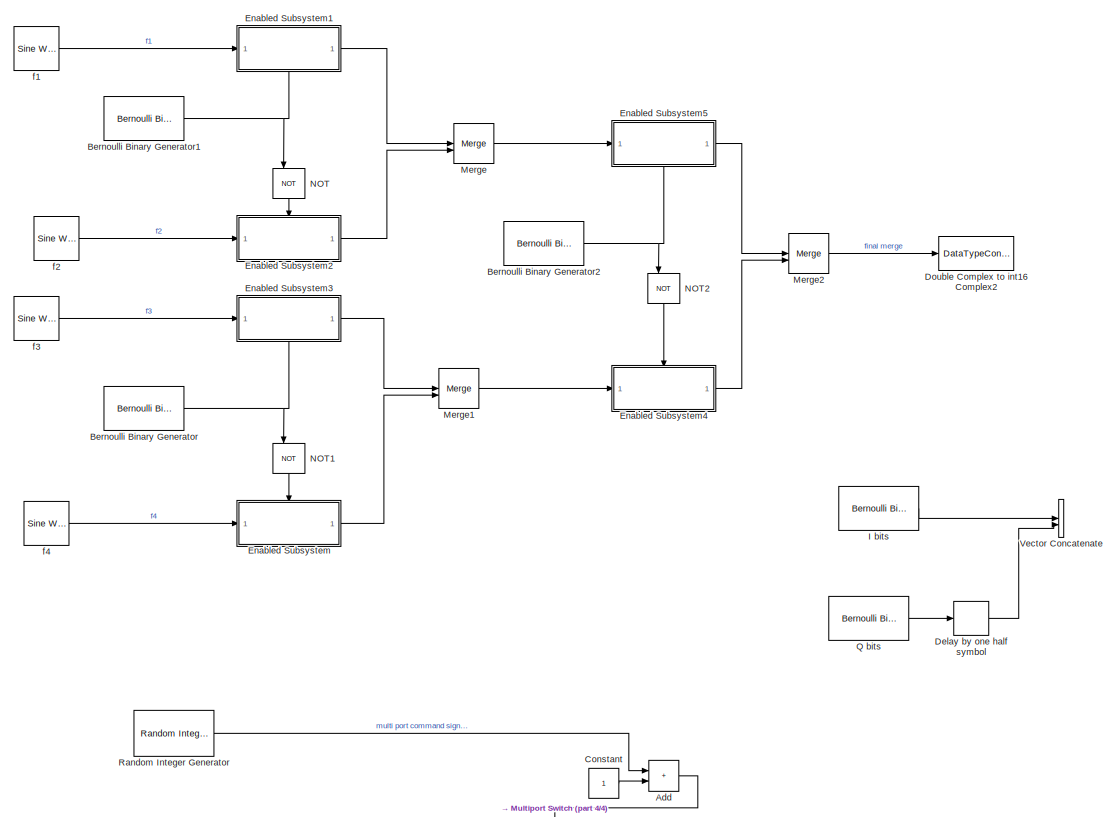
[diagram: root canvas - part 1/4, center side, full height]
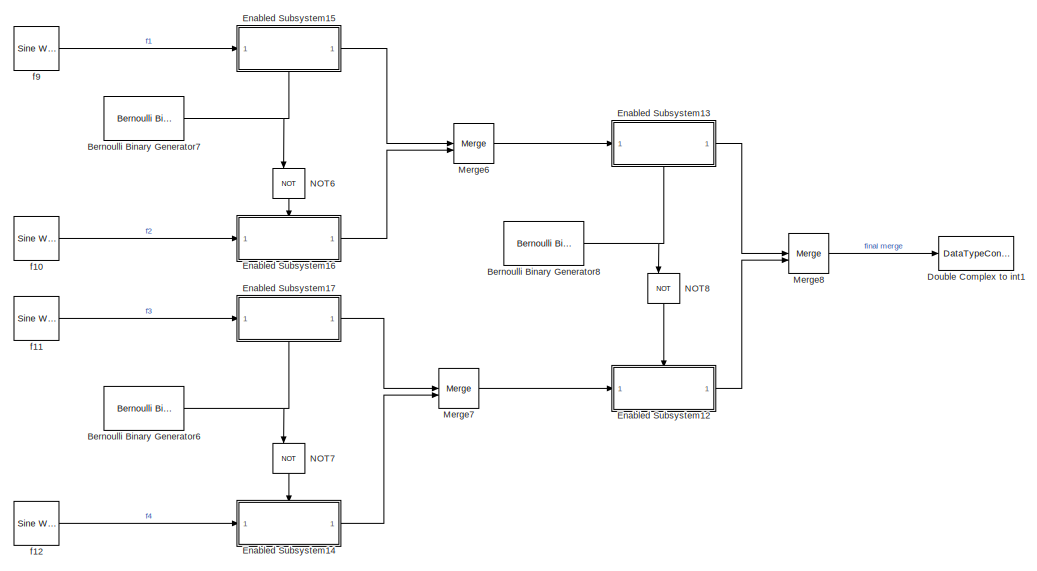
[diagram: root canvas - part 2/4, middle right region]
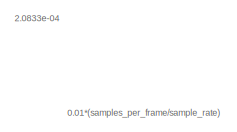
[diagram: root canvas - part 3/4, top left region]
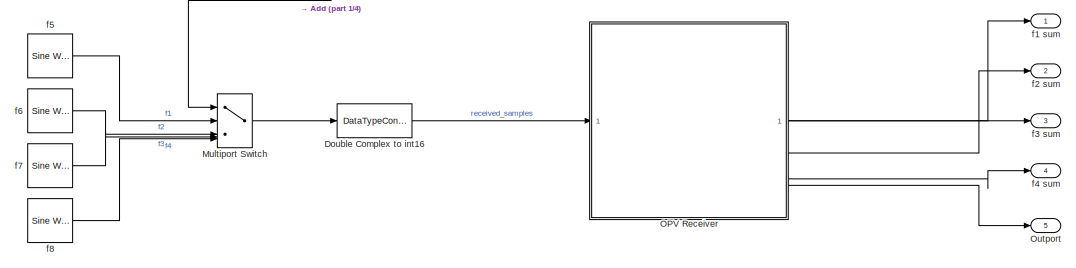
[diagram: root canvas - part 4/4, bottom center region]
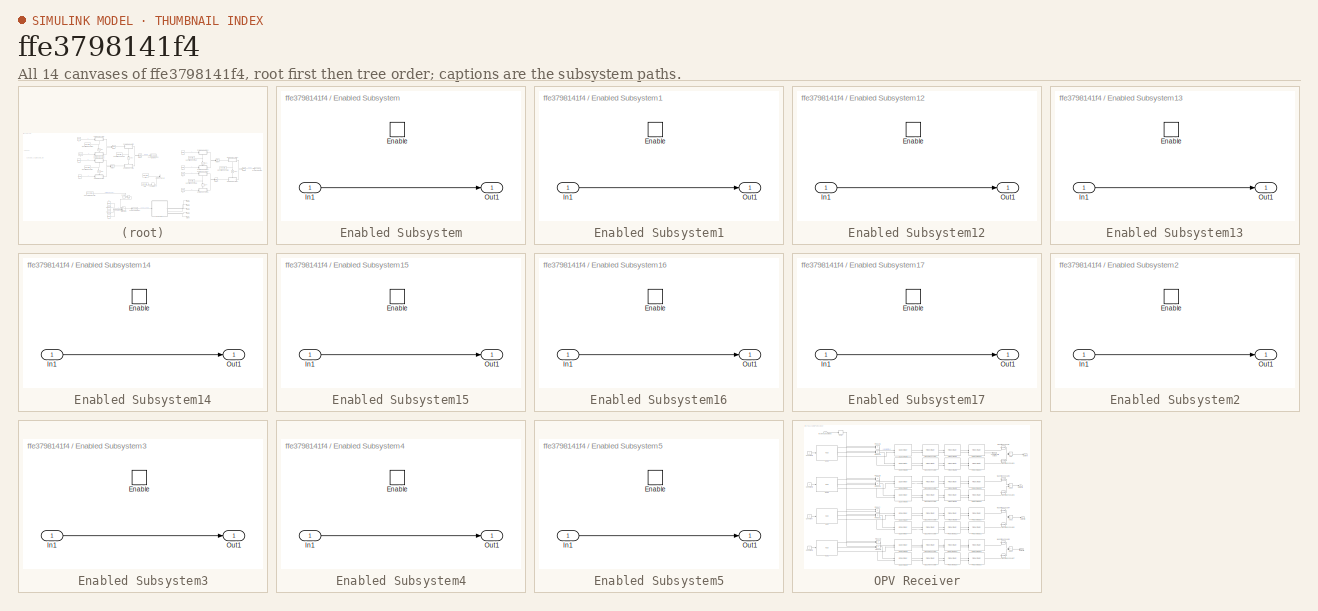
[diagram: thumbnail index - all 14 canvases of the model, root first then tree order]
MODEL slx_ffe3798141f4
KIND model
CONFIG AbsTol = auto
CONFIG EnableMultiTasking = off
CONFIG FixedStep = auto
CONFIG MaxStep = auto
CONFIG MinStep = auto
CONFIG RelTol = 1e-3
CONFIG SampleTimeConstraint = Unconstrained
CONFIG SolverName = FixedStepDiscrete
CONFIG StartTime = 0.0
CONFIG StopTime = 0.01*(samples_per_frame/sample_rate)
BLOCK [Sum] Add
  IconShape = rectangular
BLOCK [Reference] Bernoulli Binary Generator  REF=commrandsrc3/Bernoulli Binary
Generator
  Commented = on
  SourceBlock = commrandsrc3/Bernoulli Binary\nGenerator
  SourceType = Bernoulli Binary Generator
BLOCK [Reference] Bernoulli Binary Generator1  REF=commrandsrc3/Bernoulli Binary
Generator
  Commented = on
  SourceBlock = commrandsrc3/Bernoulli Binary\nGenerator
  SourceType = Bernoulli Binary Generator
BLOCK [Reference] Bernoulli Binary Generator2  REF=commrandsrc3/Bernoulli Binary
Generator
  Commented = on
  SourceBlock = commrandsrc3/Bernoulli Binary\nGenerator
  SourceType = Bernoulli Binary Generator
BLOCK [Reference] Bernoulli Binary Generator6  REF=commrandsrc3/Bernoulli Binary
Generator
  Commented = on
  SourceBlock = commrandsrc3/Bernoulli Binary\nGenerator
  SourceType = Bernoulli Binary Generator
BLOCK [Reference] Bernoulli Binary Generator7  REF=commrandsrc3/Bernoulli Binary
Generator
  Commented = on
  SourceBlock = commrandsrc3/Bernoulli Binary\nGenerator
  SourceType = Bernoulli Binary Generator
BLOCK [Reference] Bernoulli Binary Generator8  REF=commrandsrc3/Bernoulli Binary
Generator
  Commented = on
  SourceBlock = commrandsrc3/Bernoulli Binary\nGenerator
  SourceType = Bernoulli Binary Generator
BLOCK [Constant] Constant
  SampleTime = 1/(bits_per_symbol*symbol_rate)
BLOCK [Delay] Delay by one half symbol
  Commented = on
  DelayLength = 1
  InputPortMap = u0
  SampleTime = 1/(bits_per_symbol*symbol_rate)
BLOCK [DataTypeConversion] Double Complex to int1
  Commented = on
  ConvertRealWorld = Stored Integer (SI)
  OutDataTypeStr = fixdt(1,16,0)
  OutMax = [32767]
  OutMin = [-32768]
  RndMeth = Floor
BLOCK [DataTypeConversion] Double Complex to int16
  ConvertRealWorld = Stored Integer (SI)
  OutDataTypeStr = fixdt(1,16,0)
  OutMax = [32767]
  OutMin = [-32768]
  RndMeth = Floor
BLOCK [DataTypeConversion] Double Complex to int16 Complex2
  Commented = on
  ConvertRealWorld = Stored Integer (SI)
  OutDataTypeStr = fixdt(1,16,0)
  OutMax = [32767]
  OutMin = [-32768]
  RndMeth = Floor
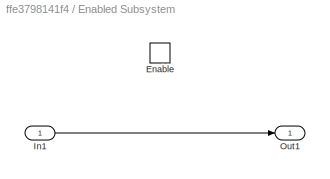
BLOCK [SubSystem] Enabled Subsystem
  Commented = on
  LibrarySourceBlock = hdlsllib/Ports &\nSubsystems/Enabled\nSubsystem
  TreatAsAtomicUnit = on
BLOCK [EnablePort] Enabled Subsystem/Enable
BLOCK [Inport] Enabled Subsystem/In1
BLOCK [Outport] Enabled Subsystem/Out1
BLOCK [SubSystem] Enabled Subsystem1
  Commented = on
  LibrarySourceBlock = hdlsllib/Ports &\nSubsystems/Enabled\nSubsystem
  NameLocation = top
  TreatAsAtomicUnit = on
BLOCK [EnablePort] Enabled Subsystem1/Enable
BLOCK [Inport] Enabled Subsystem1/In1
BLOCK [Outport] Enabled Subsystem1/Out1
BLOCK [SubSystem] Enabled Subsystem12
  Commented = on
  LibrarySourceBlock = hdlsllib/Ports &\nSubsystems/Enabled\nSubsystem
  TreatAsAtomicUnit = on
BLOCK [EnablePort] Enabled Subsystem12/Enable
BLOCK [Inport] Enabled Subsystem12/In1
BLOCK [Outport] Enabled Subsystem12/Out1
BLOCK [SubSystem] Enabled Subsystem13
  Commented = on
  LibrarySourceBlock = hdlsllib/Ports &\nSubsystems/Enabled\nSubsystem
  NameLocation = top
  TreatAsAtomicUnit = on
BLOCK [EnablePort] Enabled Subsystem13/Enable
BLOCK [Inport] Enabled Subsystem13/In1
BLOCK [Outport] Enabled Subsystem13/Out1
BLOCK [SubSystem] Enabled Subsystem14
  Commented = on
  LibrarySourceBlock = hdlsllib/Ports &\nSubsystems/Enabled\nSubsystem
  TreatAsAtomicUnit = on
BLOCK [EnablePort] Enabled Subsystem14/Enable
BLOCK [Inport] Enabled Subsystem14/In1
BLOCK [Outport] Enabled Subsystem14/Out1
BLOCK [SubSystem] Enabled Subsystem15
  Commented = on
  LibrarySourceBlock = hdlsllib/Ports &\nSubsystems/Enabled\nSubsystem
  NameLocation = top
  TreatAsAtomicUnit = on
BLOCK [EnablePort] Enabled Subsystem15/Enable
BLOCK [Inport] Enabled Subsystem15/In1
BLOCK [Outport] Enabled Subsystem15/Out1
BLOCK [SubSystem] Enabled Subsystem16
  Commented = on
  LibrarySourceBlock = hdlsllib/Ports &\nSubsystems/Enabled\nSubsystem
  TreatAsAtomicUnit = on
BLOCK [EnablePort] Enabled Subsystem16/Enable
BLOCK [Inport] Enabled Subsystem16/In1
BLOCK [Outport] Enabled Subsystem16/Out1
BLOCK [SubSystem] Enabled Subsystem17
  Commented = on
  LibrarySourceBlock = hdlsllib/Ports &\nSubsystems/Enabled\nSubsystem
  NameLocation = top
  TreatAsAtomicUnit = on
BLOCK [EnablePort] Enabled Subsystem17/Enable
BLOCK [Inport] Enabled Subsystem17/In1
BLOCK [Outport] Enabled Subsystem17/Out1
BLOCK [SubSystem] Enabled Subsystem2
  Commented = on
  LibrarySourceBlock = hdlsllib/Ports &\nSubsystems/Enabled\nSubsystem
  TreatAsAtomicUnit = on
BLOCK [EnablePort] Enabled Subsystem2/Enable
BLOCK [Inport] Enabled Subsystem2/In1
BLOCK [Outport] Enabled Subsystem2/Out1
BLOCK [SubSystem] Enabled Subsystem3
  Commented = on
  LibrarySourceBlock = hdlsllib/Ports &\nSubsystems/Enabled\nSubsystem
  NameLocation = top
  TreatAsAtomicUnit = on
BLOCK [EnablePort] Enabled Subsystem3/Enable
BLOCK [Inport] Enabled Subsystem3/In1
BLOCK [Outport] Enabled Subsystem3/Out1
BLOCK [SubSystem] Enabled Subsystem4
  Commented = on
  LibrarySourceBlock = hdlsllib/Ports &\nSubsystems/Enabled\nSubsystem
  TreatAsAtomicUnit = on
BLOCK [EnablePort] Enabled Subsystem4/Enable
BLOCK [Inport] Enabled Subsystem4/In1
BLOCK [Outport] Enabled Subsystem4/Out1
BLOCK [SubSystem] Enabled Subsystem5
  Commented = on
  LibrarySourceBlock = hdlsllib/Ports &\nSubsystems/Enabled\nSubsystem
  NameLocation = top
  TreatAsAtomicUnit = on
BLOCK [EnablePort] Enabled Subsystem5/Enable
BLOCK [Inport] Enabled Subsystem5/In1
BLOCK [Outport] Enabled Subsystem5/Out1
BLOCK [Reference] I bits  REF=commrandsrc3/Bernoulli Binary
Generator
  Commented = on
  SourceBlock = commrandsrc3/Bernoulli Binary\nGenerator
  SourceType = Bernoulli Binary Generator
BLOCK [Merge] Merge
  Commented = on
BLOCK [Merge] Merge1
  Commented = on
BLOCK [Merge] Merge2
  Commented = on
BLOCK [Merge] Merge6
  Commented = on
BLOCK [Merge] Merge7
  Commented = on
BLOCK [Merge] Merge8
  Commented = on
BLOCK [MultiPortSwitch] Multiport Switch
  DataPortIndices = {1,2,3,4}
  InputSameDT = off
  Inputs = 4
  SaturateOnIntegerOverflow = off
BLOCK [Logic] NOT
  AllPortsSameDT = off
  Commented = on
  IconShape = distinctive
  NameLocation = left
  Operator = NOT
  OutDataTypeStr = boolean
BLOCK [Logic] NOT1
  AllPortsSameDT = off
  Commented = on
  IconShape = distinctive
  NameLocation = left
  Operator = NOT
  OutDataTypeStr = boolean
BLOCK [Logic] NOT2
  AllPortsSameDT = off
  Commented = on
  IconShape = distinctive
  NameLocation = left
  Operator = NOT
  OutDataTypeStr = boolean
BLOCK [Logic] NOT6
  AllPortsSameDT = off
  Commented = on
  IconShape = distinctive
  NameLocation = left
  Operator = NOT
  OutDataTypeStr = boolean
BLOCK [Logic] NOT7
  AllPortsSameDT = off
  Commented = on
  IconShape = distinctive
  NameLocation = left
  Operator = NOT
  OutDataTypeStr = boolean
BLOCK [Logic] NOT8
  AllPortsSameDT = off
  Commented = on
  IconShape = distinctive
  NameLocation = left
  Operator = NOT
  OutDataTypeStr = boolean
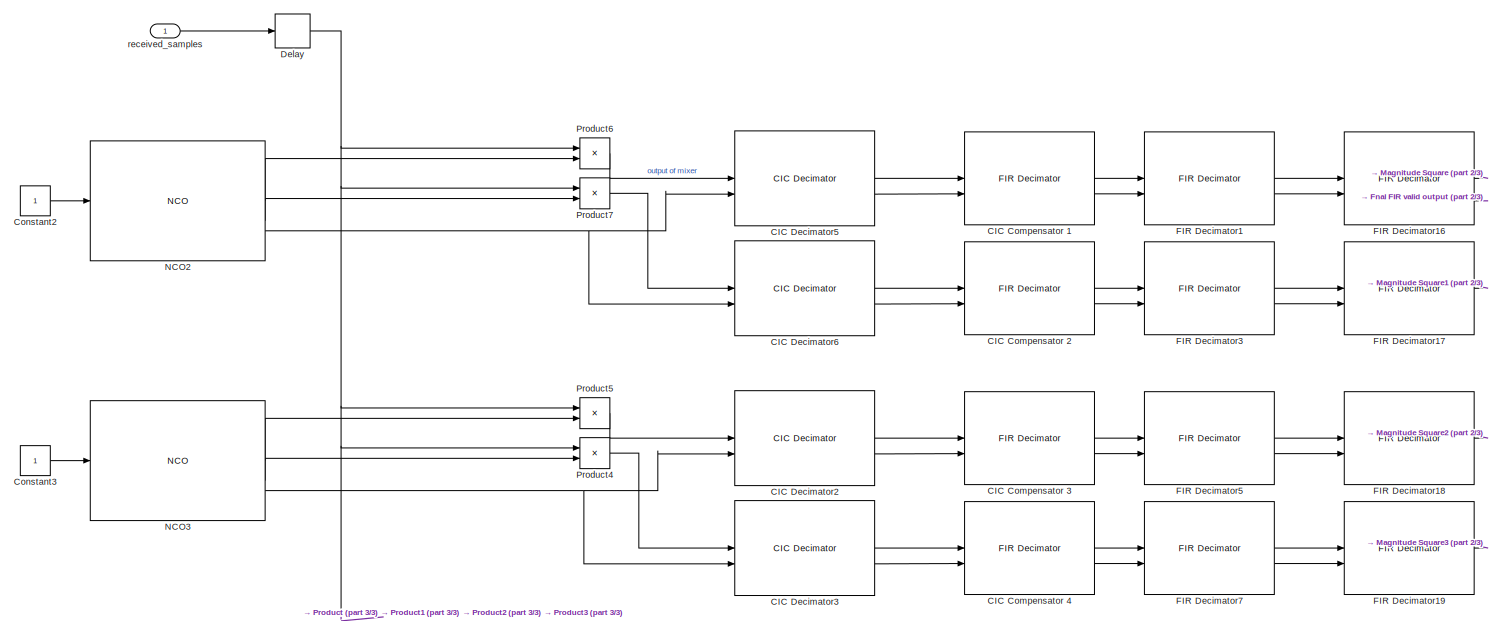
[diagram: OPV Receiver - part 1/3, full width, top band]
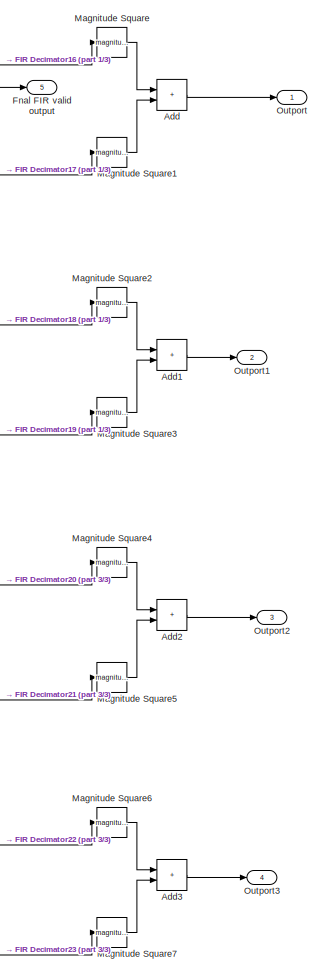
[diagram: OPV Receiver - part 2/3, right side, full height]
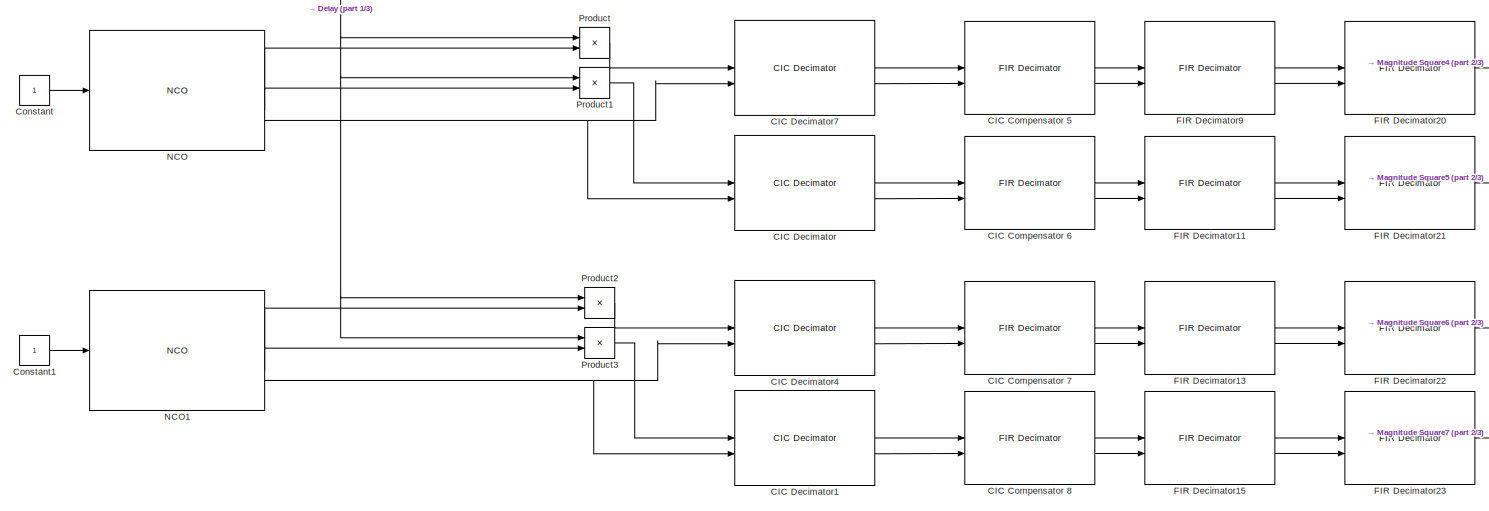
[diagram: OPV Receiver - part 3/3, full width, bottom band]
BLOCK [SubSystem] OPV Receiver
  LibrarySourceBlock = hdlsllib/Ports &\nSubsystems/Subsystem
  TreatAsAtomicUnit = on
BLOCK [Sum] OPV Receiver/Add
  Commented = on
  IconShape = rectangular
BLOCK [Sum] OPV Receiver/Add1
  Commented = on
  IconShape = rectangular
BLOCK [Sum] OPV Receiver/Add2
  Commented = on
  IconShape = rectangular
BLOCK [Sum] OPV Receiver/Add3
  Commented = on
  IconShape = rectangular
BLOCK [Reference] OPV Receiver/CIC Compensator 1  REF=dsphdlfiltering2/FIR Decimator
  Commented = on
  SourceBlock = dsphdlfiltering2/FIR Decimator
  SourceType = FIR Decimator
BLOCK [Reference] OPV Receiver/CIC Compensator 2  REF=dsphdlfiltering2/FIR Decimator
  Commented = on
  SourceBlock = dsphdlfiltering2/FIR Decimator
  SourceType = FIR Decimator
BLOCK [Reference] OPV Receiver/CIC Compensator 3  REF=dsphdlfiltering2/FIR Decimator
  Commented = on
  SourceBlock = dsphdlfiltering2/FIR Decimator
  SourceType = FIR Decimator
BLOCK [Reference] OPV Receiver/CIC Compensator 4  REF=dsphdlfiltering2/FIR Decimator
  Commented = on
  SourceBlock = dsphdlfiltering2/FIR Decimator
  SourceType = FIR Decimator
BLOCK [Reference] OPV Receiver/CIC Compensator 5  REF=dsphdlfiltering2/FIR Decimator
  Commented = on
  SourceBlock = dsphdlfiltering2/FIR Decimator
  SourceType = FIR Decimator
BLOCK [Reference] OPV Receiver/CIC Compensator 6  REF=dsphdlfiltering2/FIR Decimator
  Commented = on
  SourceBlock = dsphdlfiltering2/FIR Decimator
  SourceType = FIR Decimator
BLOCK [Reference] OPV Receiver/CIC Compensator 7  REF=dsphdlfiltering2/FIR Decimator
  Commented = on
  SourceBlock = dsphdlfiltering2/FIR Decimator
  SourceType = FIR Decimator
BLOCK [Reference] OPV Receiver/CIC Compensator 8  REF=dsphdlfiltering2/FIR Decimator
  Commented = on
  SourceBlock = dsphdlfiltering2/FIR Decimator
  SourceType = FIR Decimator
BLOCK [Reference] OPV Receiver/CIC Decimator  REF=dsphdlfiltering2/CIC Decimator
  Commented = on
  SourceBlock = dsphdlfiltering2/CIC Decimator
  SourceType = CIC Decimator
BLOCK [Reference] OPV Receiver/CIC Decimator1  REF=dsphdlfiltering2/CIC Decimator
  Commented = on
  SourceBlock = dsphdlfiltering2/CIC Decimator
  SourceType = CIC Decimator
BLOCK [Reference] OPV Receiver/CIC Decimator2  REF=dsphdlfiltering2/CIC Decimator
  Commented = on
  SourceBlock = dsphdlfiltering2/CIC Decimator
  SourceType = CIC Decimator
BLOCK [Reference] OPV Receiver/CIC Decimator3  REF=dsphdlfiltering2/CIC Decimator
  Commented = on
  SourceBlock = dsphdlfiltering2/CIC Decimator
  SourceType = CIC Decimator
BLOCK [Reference] OPV Receiver/CIC Decimator4  REF=dsphdlfiltering2/CIC Decimator
  Commented = on
  SourceBlock = dsphdlfiltering2/CIC Decimator
  SourceType = CIC Decimator
BLOCK [Reference] OPV Receiver/CIC Decimator5  REF=dsphdlfiltering2/CIC Decimator
  Commented = on
  SourceBlock = dsphdlfiltering2/CIC Decimator
  SourceType = CIC Decimator
BLOCK [Reference] OPV Receiver/CIC Decimator6  REF=dsphdlfiltering2/CIC Decimator
  Commented = on
  SourceBlock = dsphdlfiltering2/CIC Decimator
  SourceType = CIC Decimator
BLOCK [Reference] OPV Receiver/CIC Decimator7  REF=dsphdlfiltering2/CIC Decimator
  Commented = on
  SourceBlock = dsphdlfiltering2/CIC Decimator
  SourceType = CIC Decimator
BLOCK [Constant] OPV Receiver/Constant
  Commented = on
  OutDataTypeStr = boolean
  SampleTime = 1/(device_clock)
BLOCK [Constant] OPV Receiver/Constant1
  Commented = on
  OutDataTypeStr = boolean
  SampleTime = 1/(device_clock)
BLOCK [Constant] OPV Receiver/Constant2
  Commented = on
  OutDataTypeStr = boolean
  SampleTime = 1/(device_clock)
BLOCK [Constant] OPV Receiver/Constant3
  Commented = on
  OutDataTypeStr = boolean
  SampleTime = 1/(device_clock)
BLOCK [Delay] OPV Receiver/Delay
  Commented = on
  DelayLength = 9
  InitialCondition = 0
  InputPortMap = u0
BLOCK [Reference] OPV Receiver/FIR Decimator1  REF=dsphdlfiltering2/FIR Decimator
  Commented = on
  SourceBlock = dsphdlfiltering2/FIR Decimator
  SourceType = FIR Decimator
BLOCK [Reference] OPV Receiver/FIR Decimator11  REF=dsphdlfiltering2/FIR Decimator
  Commented = on
  SourceBlock = dsphdlfiltering2/FIR Decimator
  SourceType = FIR Decimator
BLOCK [Reference] OPV Receiver/FIR Decimator13  REF=dsphdlfiltering2/FIR Decimator
  Commented = on
  SourceBlock = dsphdlfiltering2/FIR Decimator
  SourceType = FIR Decimator
BLOCK [Reference] OPV Receiver/FIR Decimator15  REF=dsphdlfiltering2/FIR Decimator
  Commented = on
  SourceBlock = dsphdlfiltering2/FIR Decimator
  SourceType = FIR Decimator
BLOCK [Reference] OPV Receiver/FIR Decimator16  REF=dsphdlfiltering2/FIR Decimator
  Commented = on
  SourceBlock = dsphdlfiltering2/FIR Decimator
  SourceType = FIR Decimator
BLOCK [Reference] OPV Receiver/FIR Decimator17  REF=dsphdlfiltering2/FIR Decimator
  Commented = on
  SourceBlock = dsphdlfiltering2/FIR Decimator
  SourceType = FIR Decimator
BLOCK [Reference] OPV Receiver/FIR Decimator18  REF=dsphdlfiltering2/FIR Decimator
  Commented = on
  SourceBlock = dsphdlfiltering2/FIR Decimator
  SourceType = FIR Decimator
BLOCK [Reference] OPV Receiver/FIR Decimator19  REF=dsphdlfiltering2/FIR Decimator
  Commented = on
  SourceBlock = dsphdlfiltering2/FIR Decimator
  SourceType = FIR Decimator
BLOCK [Reference] OPV Receiver/FIR Decimator20  REF=dsphdlfiltering2/FIR Decimator
  Commented = on
  SourceBlock = dsphdlfiltering2/FIR Decimator
  SourceType = FIR Decimator
BLOCK [Reference] OPV Receiver/FIR Decimator21  REF=dsphdlfiltering2/FIR Decimator
  Commented = on
  SourceBlock = dsphdlfiltering2/FIR Decimator
  SourceType = FIR Decimator
BLOCK [Reference] OPV Receiver/FIR Decimator22  REF=dsphdlfiltering2/FIR Decimator
  Commented = on
  SourceBlock = dsphdlfiltering2/FIR Decimator
  SourceType = FIR Decimator
BLOCK [Reference] OPV Receiver/FIR Decimator23  REF=dsphdlfiltering2/FIR Decimator
  Commented = on
  SourceBlock = dsphdlfiltering2/FIR Decimator
  SourceType = FIR Decimator
BLOCK [Reference] OPV Receiver/FIR Decimator3  REF=dsphdlfiltering2/FIR Decimator
  Commented = on
  SourceBlock = dsphdlfiltering2/FIR Decimator
  SourceType = FIR Decimator
BLOCK [Reference] OPV Receiver/FIR Decimator5  REF=dsphdlfiltering2/FIR Decimator
  Commented = on
  SourceBlock = dsphdlfiltering2/FIR Decimator
  SourceType = FIR Decimator
BLOCK [Reference] OPV Receiver/FIR Decimator7  REF=dsphdlfiltering2/FIR Decimator
  Commented = on
  SourceBlock = dsphdlfiltering2/FIR Decimator
  SourceType = FIR Decimator
BLOCK [Reference] OPV Receiver/FIR Decimator9  REF=dsphdlfiltering2/FIR Decimator
  Commented = on
  SourceBlock = dsphdlfiltering2/FIR Decimator
  SourceType = FIR Decimator
BLOCK [Outport] OPV Receiver/Fnal FIR valid output
  Port = 5
BLOCK [Math] OPV Receiver/Magnitude Square
  Commented = on
  Operator = magnitude^2
  OutDataTypeStr = Inherit: Inherit via internal rule
  RndMeth = Zero
  SignedPower = on
BLOCK [Math] OPV Receiver/Magnitude Square1
  Commented = on
  Operator = magnitude^2
  OutDataTypeStr = Inherit: Inherit via internal rule
  RndMeth = Zero
  SignedPower = on
BLOCK [Math] OPV Receiver/Magnitude Square2
  Commented = on
  Operator = magnitude^2
  OutDataTypeStr = Inherit: Inherit via internal rule
  RndMeth = Zero
  SignedPower = on
BLOCK [Math] OPV Receiver/Magnitude Square3
  Commented = on
  Operator = magnitude^2
  OutDataTypeStr = Inherit: Inherit via internal rule
  RndMeth = Zero
  SignedPower = on
BLOCK [Math] OPV Receiver/Magnitude Square4
  Commented = on
  Operator = magnitude^2
  OutDataTypeStr = Inherit: Inherit via internal rule
  RndMeth = Zero
  SignedPower = on
BLOCK [Math] OPV Receiver/Magnitude Square5
  Commented = on
  Operator = magnitude^2
  OutDataTypeStr = Inherit: Inherit via internal rule
  RndMeth = Zero
  SignedPower = on
BLOCK [Math] OPV Receiver/Magnitude Square6
  Commented = on
  Operator = magnitude^2
  OutDataTypeStr = Inherit: Inherit via internal rule
  RndMeth = Zero
  SignedPower = on
BLOCK [Math] OPV Receiver/Magnitude Square7
  Commented = on
  Operator = magnitude^2
  OutDataTypeStr = Inherit: Inherit via internal rule
  RndMeth = Zero
  SignedPower = on
BLOCK [Reference] OPV Receiver/NCO  REF=dsphdlsigops2/NCO
  Commented = on
  LibrarySourceBlock = dsphdlsrcs2/NCO
  SourceBlock = dsphdlsigops2/NCO
  SourceType = NCO
BLOCK [Reference] OPV Receiver/NCO1  REF=dsphdlsigops2/NCO
  Commented = on
  LibrarySourceBlock = dsphdlsrcs2/NCO
  SourceBlock = dsphdlsigops2/NCO
  SourceType = NCO
BLOCK [Reference] OPV Receiver/NCO2  REF=dsphdlsigops2/NCO
  Commented = on
  LibrarySourceBlock = dsphdlsrcs2/NCO
  SourceBlock = dsphdlsigops2/NCO
  SourceType = NCO
BLOCK [Reference] OPV Receiver/NCO3  REF=dsphdlsigops2/NCO
  Commented = on
  LibrarySourceBlock = dsphdlsrcs2/NCO
  SourceBlock = dsphdlsigops2/NCO
  SourceType = NCO
BLOCK [Outport] OPV Receiver/Outport
BLOCK [Outport] OPV Receiver/Outport1
  Port = 2
BLOCK [Outport] OPV Receiver/Outport2
  Port = 3
BLOCK [Outport] OPV Receiver/Outport3
  Port = 4
BLOCK [Product] OPV Receiver/Product
  Commented = on
BLOCK [Product] OPV Receiver/Product1
  Commented = on
BLOCK [Product] OPV Receiver/Product2
  Commented = on
BLOCK [Product] OPV Receiver/Product3
  Commented = on
BLOCK [Product] OPV Receiver/Product4
  Commented = on
BLOCK [Product] OPV Receiver/Product5
  Commented = on
BLOCK [Product] OPV Receiver/Product6
  Commented = on
BLOCK [Product] OPV Receiver/Product7
  Commented = on
BLOCK [Inport] OPV Receiver/received_samples
BLOCK [Outport] Outport
  Port = 5
BLOCK [Reference] Q bits  REF=commrandsrc3/Bernoulli Binary
Generator
  Commented = on
  SourceBlock = commrandsrc3/Bernoulli Binary\nGenerator
  SourceType = Bernoulli Binary Generator
BLOCK [Reference] Random Integer Generator  REF=commrandsrc3/Random Integer
Generator
  SourceBlock = commrandsrc3/Random Integer\nGenerator
  SourceType = Random Integer Generator
BLOCK [Concatenate] Vector Concatenate
  Commented = on
BLOCK [Reference] f1  REF=dspsrcs4/Sine Wave
  Commented = on
  LibrarySourceBlock = dsphdlsupportsrcs/Sine Wave
  SourceBlock = dspsrcs4/Sine Wave
  SourceType = Sine Wave
BLOCK [Outport] f1 sum
BLOCK [Reference] f10  REF=dspsrcs4/Sine Wave
  Commented = on
  LibrarySourceBlock = dsphdlsupportsrcs/Sine Wave
  SourceBlock = dspsrcs4/Sine Wave
  SourceType = Sine Wave
BLOCK [Reference] f11  REF=dspsrcs4/Sine Wave
  Commented = on
  LibrarySourceBlock = dsphdlsupportsrcs/Sine Wave
  SourceBlock = dspsrcs4/Sine Wave
  SourceType = Sine Wave
BLOCK [Reference] f12  REF=dspsrcs4/Sine Wave
  Commented = on
  LibrarySourceBlock = dsphdlsupportsrcs/Sine Wave
  SourceBlock = dspsrcs4/Sine Wave
  SourceType = Sine Wave
BLOCK [Reference] f2  REF=dspsrcs4/Sine Wave
  Commented = on
  LibrarySourceBlock = dsphdlsupportsrcs/Sine Wave
  SourceBlock = dspsrcs4/Sine Wave
  SourceType = Sine Wave
BLOCK [Outport] f2 sum
  Port = 2
BLOCK [Reference] f3  REF=dspsrcs4/Sine Wave
  Commented = on
  LibrarySourceBlock = dsphdlsupportsrcs/Sine Wave
  SourceBlock = dspsrcs4/Sine Wave
  SourceType = Sine Wave
BLOCK [Outport] f3 sum
  Port = 3
BLOCK [Reference] f4  REF=dspsrcs4/Sine Wave
  Commented = on
  LibrarySourceBlock = dsphdlsupportsrcs/Sine Wave
  SourceBlock = dspsrcs4/Sine Wave
  SourceType = Sine Wave
BLOCK [Outport] f4 sum
  Port = 4
BLOCK [Reference] f5  REF=dspsrcs4/Sine Wave
  LibrarySourceBlock = dsphdlsupportsrcs/Sine Wave
  SourceBlock = dspsrcs4/Sine Wave
  SourceType = Sine Wave
BLOCK [Reference] f6  REF=dspsrcs4/Sine Wave
  LibrarySourceBlock = dsphdlsupportsrcs/Sine Wave
  SourceBlock = dspsrcs4/Sine Wave
  SourceType = Sine Wave
BLOCK [Reference] f7  REF=dspsrcs4/Sine Wave
  LibrarySourceBlock = dsphdlsupportsrcs/Sine Wave
  SourceBlock = dspsrcs4/Sine Wave
  SourceType = Sine Wave
BLOCK [Reference] f8  REF=dspsrcs4/Sine Wave
  LibrarySourceBlock = dsphdlsupportsrcs/Sine Wave
  SourceBlock = dspsrcs4/Sine Wave
  SourceType = Sine Wave
BLOCK [Reference] f9  REF=dspsrcs4/Sine Wave
  Commented = on
  LibrarySourceBlock = dsphdlsupportsrcs/Sine Wave
  SourceBlock = dspsrcs4/Sine Wave
  SourceType = Sine Wave
ANNOTATION (root): 0.01*(samples_per_frame/sample_rate)
ANNOTATION (root): 2.0833e-04
LINE Add:1 -> Multiport Switch:1
NET Bernoulli Binary Generator1:1 -> Enabled Subsystem1:enable, NOT:1
NET Bernoulli Binary Generator2:1 -> Enabled Subsystem5:enable, NOT2:1
NET Bernoulli Binary Generator6:1 -> Enabled Subsystem17:enable, NOT7:1
NET Bernoulli Binary Generator7:1 -> Enabled Subsystem15:enable, NOT6:1
NET Bernoulli Binary Generator8:1 -> Enabled Subsystem13:enable, NOT8:1
NET Bernoulli Binary Generator:1 -> Enabled Subsystem3:enable, NOT1:1
LINE Constant:1 -> Add:2
LINE Delay by one half symbol:1 -> Vector Concatenate:2
LINE Double Complex to int16:1 -> OPV Receiver:1
LINE Enabled Subsystem/In1:1 -> Enabled Subsystem/Out1:1
LINE Enabled Subsystem1/In1:1 -> Enabled Subsystem1/Out1:1
LINE Enabled Subsystem12/In1:1 -> Enabled Subsystem12/Out1:1
LINE Enabled Subsystem12:1 -> Merge8:2
LINE Enabled Subsystem13/In1:1 -> Enabled Subsystem13/Out1:1
LINE Enabled Subsystem13:1 -> Merge8:1
LINE Enabled Subsystem14/In1:1 -> Enabled Subsystem14/Out1:1
LINE Enabled Subsystem14:1 -> Merge7:2
LINE Enabled Subsystem15/In1:1 -> Enabled Subsystem15/Out1:1
LINE Enabled Subsystem15:1 -> Merge6:1
LINE Enabled Subsystem16/In1:1 -> Enabled Subsystem16/Out1:1
LINE Enabled Subsystem16:1 -> Merge6:2
LINE Enabled Subsystem17/In1:1 -> Enabled Subsystem17/Out1:1
LINE Enabled Subsystem17:1 -> Merge7:1
LINE Enabled Subsystem1:1 -> Merge:1
LINE Enabled Subsystem2/In1:1 -> Enabled Subsystem2/Out1:1
LINE Enabled Subsystem2:1 -> Merge:2
LINE Enabled Subsystem3/In1:1 -> Enabled Subsystem3/Out1:1
LINE Enabled Subsystem3:1 -> Merge1:1
LINE Enabled Subsystem4/In1:1 -> Enabled Subsystem4/Out1:1
LINE Enabled Subsystem4:1 -> Merge2:2
LINE Enabled Subsystem5/In1:1 -> Enabled Subsystem5/Out1:1
LINE Enabled Subsystem5:1 -> Merge2:1
LINE Enabled Subsystem:1 -> Merge1:2
LINE I bits:1 -> Vector Concatenate:1
LINE Merge1:1 -> Enabled Subsystem4:1
LINE Merge2:1 -> Double Complex to int16 Complex2:1
LINE Merge6:1 -> Enabled Subsystem13:1
LINE Merge7:1 -> Enabled Subsystem12:1
LINE Merge8:1 -> Double Complex to int1:1
LINE Merge:1 -> Enabled Subsystem5:1
LINE Multiport Switch:1 -> Double Complex to int16:1
LINE NOT1:1 -> Enabled Subsystem:enable
LINE NOT2:1 -> Enabled Subsystem4:enable
LINE NOT6:1 -> Enabled Subsystem16:enable
LINE NOT7:1 -> Enabled Subsystem14:enable
LINE NOT8:1 -> Enabled Subsystem12:enable
LINE NOT:1 -> Enabled Subsystem2:enable
LINE OPV Receiver/Add1:1 -> OPV Receiver/Outport1:1
LINE OPV Receiver/Add2:1 -> OPV Receiver/Outport2:1
LINE OPV Receiver/Add3:1 -> OPV Receiver/Outport3:1
LINE OPV Receiver/Add:1 -> OPV Receiver/Outport:1
LINE OPV Receiver/CIC Compensator 1:1 -> OPV Receiver/FIR Decimator1:1
LINE OPV Receiver/CIC Compensator 1:2 -> OPV Receiver/FIR Decimator1:2
LINE OPV Receiver/CIC Compensator 2:1 -> OPV Receiver/FIR Decimator3:1
LINE OPV Receiver/CIC Compensator 2:2 -> OPV Receiver/FIR Decimator3:2
LINE OPV Receiver/CIC Compensator 3:1 -> OPV Receiver/FIR Decimator5:1
LINE OPV Receiver/CIC Compensator 3:2 -> OPV Receiver/FIR Decimator5:2
LINE OPV Receiver/CIC Compensator 4:1 -> OPV Receiver/FIR Decimator7:1
LINE OPV Receiver/CIC Compensator 4:2 -> OPV Receiver/FIR Decimator7:2
LINE OPV Receiver/CIC Compensator 5:1 -> OPV Receiver/FIR Decimator9:1
LINE OPV Receiver/CIC Compensator 5:2 -> OPV Receiver/FIR Decimator9:2
LINE OPV Receiver/CIC Compensator 6:1 -> OPV Receiver/FIR Decimator11:1
LINE OPV Receiver/CIC Compensator 6:2 -> OPV Receiver/FIR Decimator11:2
LINE OPV Receiver/CIC Compensator 7:1 -> OPV Receiver/FIR Decimator13:1
LINE OPV Receiver/CIC Compensator 7:2 -> OPV Receiver/FIR Decimator13:2
LINE OPV Receiver/CIC Compensator 8:1 -> OPV Receiver/FIR Decimator15:1
LINE OPV Receiver/CIC Compensator 8:2 -> OPV Receiver/FIR Decimator15:2
LINE OPV Receiver/CIC Decimator1:1 -> OPV Receiver/CIC Compensator 8:1
LINE OPV Receiver/CIC Decimator1:2 -> OPV Receiver/CIC Compensator 8:2
LINE OPV Receiver/CIC Decimator2:1 -> OPV Receiver/CIC Compensator 3:1
LINE OPV Receiver/CIC Decimator2:2 -> OPV Receiver/CIC Compensator 3:2
LINE OPV Receiver/CIC Decimator3:1 -> OPV Receiver/CIC Compensator 4:1
LINE OPV Receiver/CIC Decimator3:2 -> OPV Receiver/CIC Compensator 4:2
LINE OPV Receiver/CIC Decimator4:1 -> OPV Receiver/CIC Compensator 7:1
LINE OPV Receiver/CIC Decimator4:2 -> OPV Receiver/CIC Compensator 7:2
LINE OPV Receiver/CIC Decimator5:1 -> OPV Receiver/CIC Compensator 1:1
LINE OPV Receiver/CIC Decimator5:2 -> OPV Receiver/CIC Compensator 1:2
LINE OPV Receiver/CIC Decimator6:1 -> OPV Receiver/CIC Compensator 2:1
LINE OPV Receiver/CIC Decimator6:2 -> OPV Receiver/CIC Compensator 2:2
LINE OPV Receiver/CIC Decimator7:1 -> OPV Receiver/CIC Compensator 5:1
LINE OPV Receiver/CIC Decimator7:2 -> OPV Receiver/CIC Compensator 5:2
LINE OPV Receiver/CIC Decimator:1 -> OPV Receiver/CIC Compensator 6:1
LINE OPV Receiver/CIC Decimator:2 -> OPV Receiver/CIC Compensator 6:2
LINE OPV Receiver/Constant1:1 -> OPV Receiver/NCO1:1
LINE OPV Receiver/Constant2:1 -> OPV Receiver/NCO2:1
LINE OPV Receiver/Constant3:1 -> OPV Receiver/NCO3:1
LINE OPV Receiver/Constant:1 -> OPV Receiver/NCO:1
NET OPV Receiver/Delay:1 -> OPV Receiver/Product1:1, OPV Receiver/Product2:1, OPV Receiver/Product3:1, OPV Receiver/Product4:1, OPV Receiver/Product5:1, OPV Receiver/Product6:1, OPV Receiver/Product7:1, OPV Receiver/Product:1
LINE OPV Receiver/FIR Decimator11:1 -> OPV Receiver/FIR Decimator21:1
LINE OPV Receiver/FIR Decimator11:2 -> OPV Receiver/FIR Decimator21:2
LINE OPV Receiver/FIR Decimator13:1 -> OPV Receiver/FIR Decimator22:1
LINE OPV Receiver/FIR Decimator13:2 -> OPV Receiver/FIR Decimator22:2
LINE OPV Receiver/FIR Decimator15:1 -> OPV Receiver/FIR Decimator23:1
LINE OPV Receiver/FIR Decimator15:2 -> OPV Receiver/FIR Decimator23:2
LINE OPV Receiver/FIR Decimator16:1 -> OPV Receiver/Magnitude Square:1
LINE OPV Receiver/FIR Decimator16:2 -> OPV Receiver/Fnal FIR valid output:1
LINE OPV Receiver/FIR Decimator17:1 -> OPV Receiver/Magnitude Square1:1
LINE OPV Receiver/FIR Decimator18:1 -> OPV Receiver/Magnitude Square2:1
LINE OPV Receiver/FIR Decimator19:1 -> OPV Receiver/Magnitude Square3:1
LINE OPV Receiver/FIR Decimator1:1 -> OPV Receiver/FIR Decimator16:1
LINE OPV Receiver/FIR Decimator1:2 -> OPV Receiver/FIR Decimator16:2
LINE OPV Receiver/FIR Decimator20:1 -> OPV Receiver/Magnitude Square4:1
LINE OPV Receiver/FIR Decimator21:1 -> OPV Receiver/Magnitude Square5:1
LINE OPV Receiver/FIR Decimator22:1 -> OPV Receiver/Magnitude Square6:1
LINE OPV Receiver/FIR Decimator23:1 -> OPV Receiver/Magnitude Square7:1
LINE OPV Receiver/FIR Decimator3:1 -> OPV Receiver/FIR Decimator17:1
LINE OPV Receiver/FIR Decimator3:2 -> OPV Receiver/FIR Decimator17:2
LINE OPV Receiver/FIR Decimator5:1 -> OPV Receiver/FIR Decimator18:1
LINE OPV Receiver/FIR Decimator5:2 -> OPV Receiver/FIR Decimator18:2
LINE OPV Receiver/FIR Decimator7:1 -> OPV Receiver/FIR Decimator19:1
LINE OPV Receiver/FIR Decimator7:2 -> OPV Receiver/FIR Decimator19:2
LINE OPV Receiver/FIR Decimator9:1 -> OPV Receiver/FIR Decimator20:1
LINE OPV Receiver/FIR Decimator9:2 -> OPV Receiver/FIR Decimator20:2
LINE OPV Receiver/Magnitude Square1:1 -> OPV Receiver/Add:2
LINE OPV Receiver/Magnitude Square2:1 -> OPV Receiver/Add1:1
LINE OPV Receiver/Magnitude Square3:1 -> OPV Receiver/Add1:2
LINE OPV Receiver/Magnitude Square4:1 -> OPV Receiver/Add2:1
LINE OPV Receiver/Magnitude Square5:1 -> OPV Receiver/Add2:2
LINE OPV Receiver/Magnitude Square6:1 -> OPV Receiver/Add3:1
LINE OPV Receiver/Magnitude Square7:1 -> OPV Receiver/Add3:2
LINE OPV Receiver/Magnitude Square:1 -> OPV Receiver/Add:1
LINE OPV Receiver/NCO1:1 -> OPV Receiver/Product2:2
LINE OPV Receiver/NCO1:2 -> OPV Receiver/Product3:2
NET OPV Receiver/NCO1:3 -> OPV Receiver/CIC Decimator1:2, OPV Receiver/CIC Decimator4:2
LINE OPV Receiver/NCO2:1 -> OPV Receiver/Product6:2
LINE OPV Receiver/NCO2:2 -> OPV Receiver/Product7:2
NET OPV Receiver/NCO2:3 -> OPV Receiver/CIC Decimator5:2, OPV Receiver/CIC Decimator6:2
LINE OPV Receiver/NCO3:1 -> OPV Receiver/Product5:2
LINE OPV Receiver/NCO3:2 -> OPV Receiver/Product4:2
NET OPV Receiver/NCO3:3 -> OPV Receiver/CIC Decimator2:2, OPV Receiver/CIC Decimator3:2
LINE OPV Receiver/NCO:1 -> OPV Receiver/Product:2
LINE OPV Receiver/NCO:2 -> OPV Receiver/Product1:2
NET OPV Receiver/NCO:3 -> OPV Receiver/CIC Decimator7:2, OPV Receiver/CIC Decimator:2
LINE OPV Receiver/Product1:1 -> OPV Receiver/CIC Decimator:1
LINE OPV Receiver/Product2:1 -> OPV Receiver/CIC Decimator4:1
LINE OPV Receiver/Product3:1 -> OPV Receiver/CIC Decimator1:1
LINE OPV Receiver/Product4:1 -> OPV Receiver/CIC Decimator3:1
LINE OPV Receiver/Product5:1 -> OPV Receiver/CIC Decimator2:1
LINE OPV Receiver/Product6:1 -> OPV Receiver/CIC Decimator5:1
LINE OPV Receiver/Product7:1 -> OPV Receiver/CIC Decimator6:1
LINE OPV Receiver/Product:1 -> OPV Receiver/CIC Decimator7:1
LINE OPV Receiver/received_samples:1 -> OPV Receiver/Delay:1
LINE OPV Receiver:1 -> f1 sum:1
LINE OPV Receiver:2 -> f2 sum:1
LINE OPV Receiver:3 -> f3 sum:1
LINE OPV Receiver:4 -> f4 sum:1
LINE OPV Receiver:5 -> Outport:1
LINE Q bits:1 -> Delay by one half symbol:1
LINE Random Integer Generator:1 -> Add:1
LINE f10:1 -> Enabled Subsystem16:1
LINE f11:1 -> Enabled Subsystem17:1
LINE f12:1 -> Enabled Subsystem14:1
LINE f1:1 -> Enabled Subsystem1:1
LINE f2:1 -> Enabled Subsystem2:1
LINE f3:1 -> Enabled Subsystem3:1
LINE f4:1 -> Enabled Subsystem:1
LINE f5:1 -> Multiport Switch:2
LINE f6:1 -> Multiport Switch:3
LINE f7:1 -> Multiport Switch:4
LINE f8:1 -> Multiport Switch:5
LINE f9:1 -> Enabled Subsystem15:1
note: NET lines group one-source signal fan-out (src -> all destinations, sorted); 1:1 wires keep LINE
